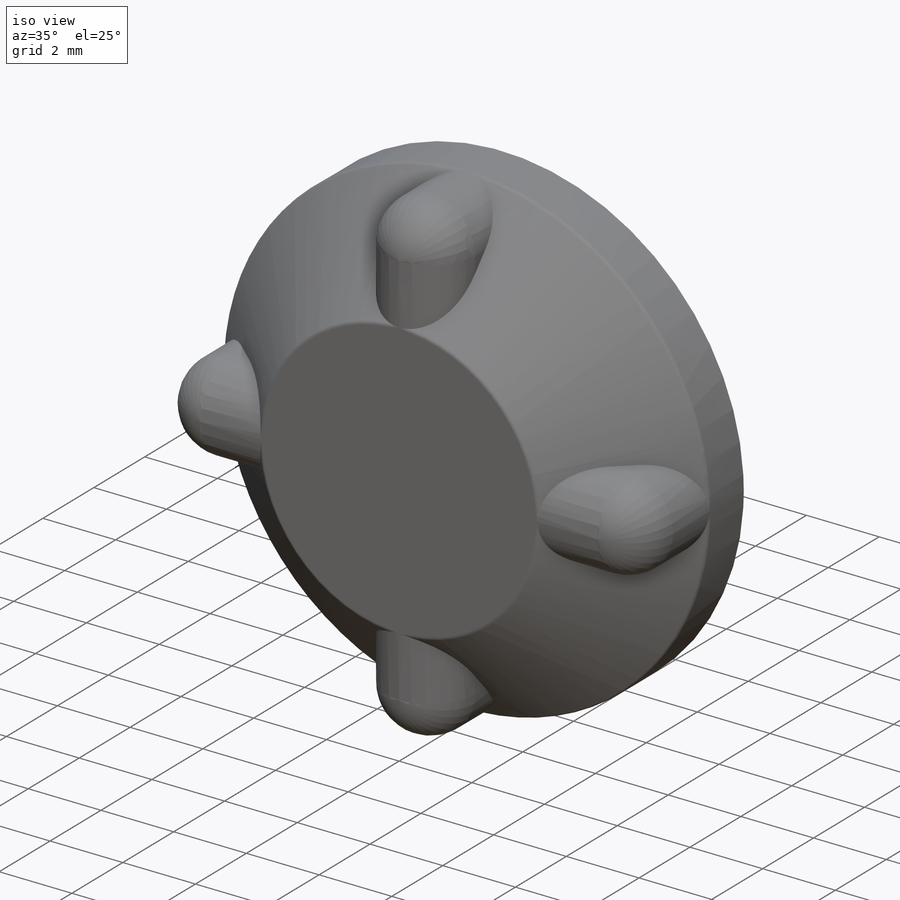
[diagram: iso view]
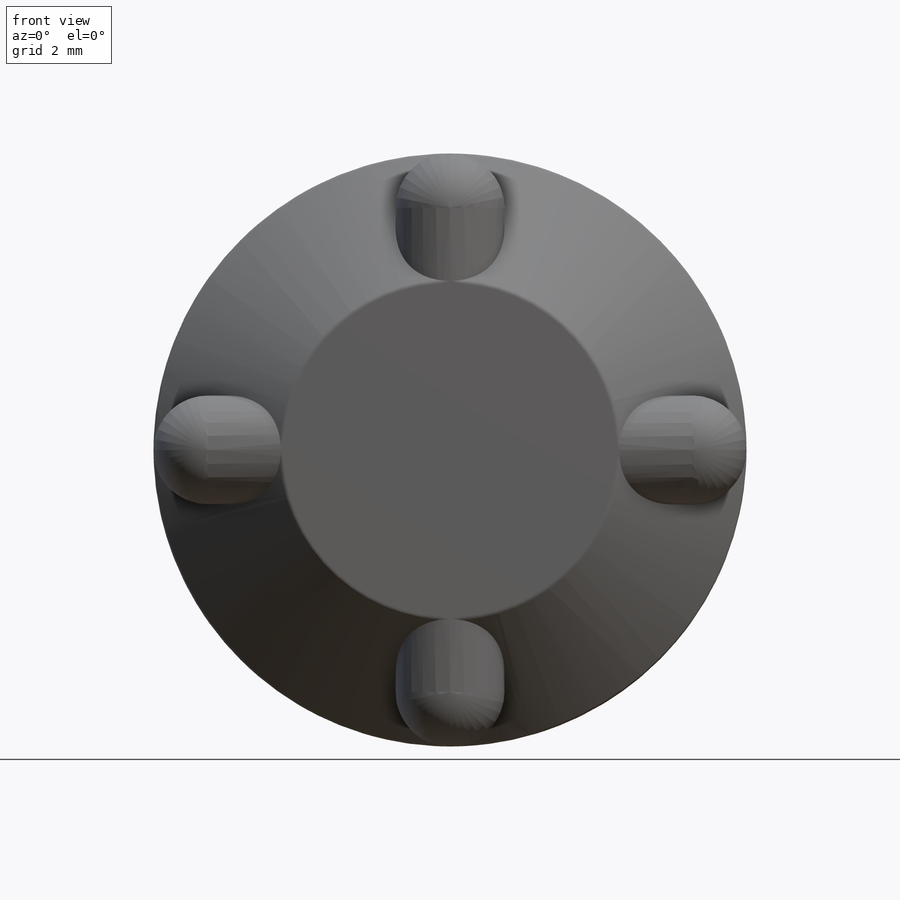
[diagram: front view]
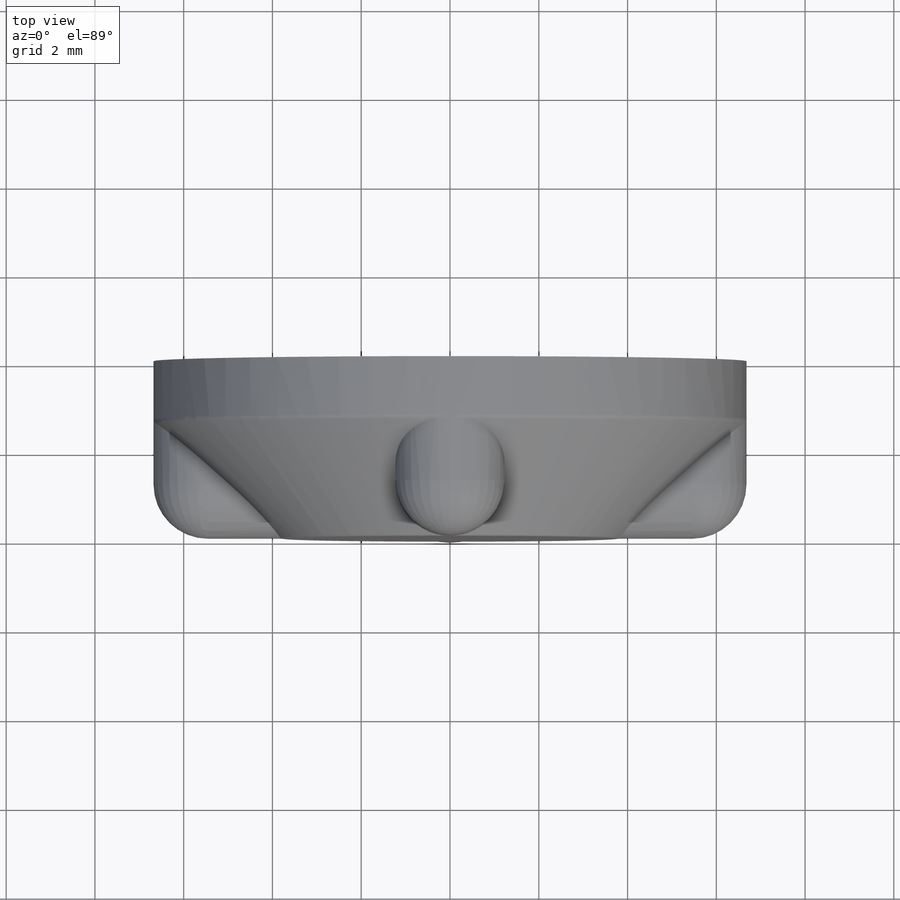
[diagram: top view]
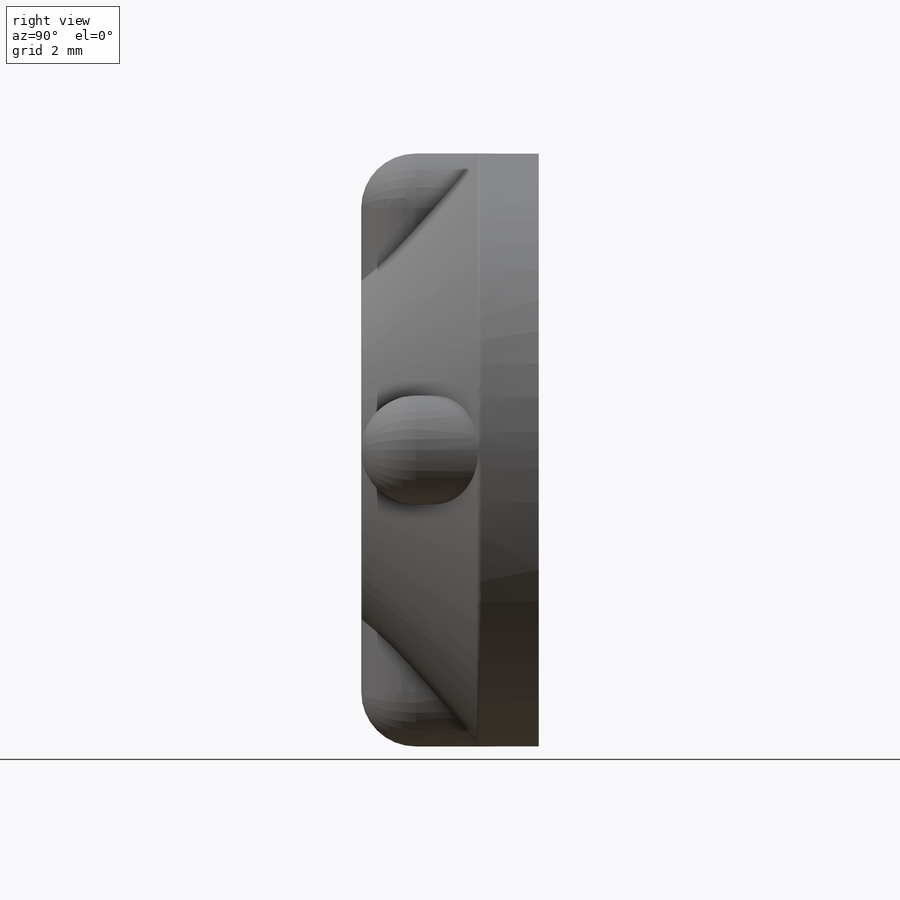
[diagram: right view]
SOLIDWORKS PART (.sldprt)
format: sldprt  version: not decoded by parser v0  size: 379,904 bytes
history: native  units: mm
features: sketch x6, extrude x3, fillet x2, material x1, plane x1 (+16 scaffold rows collapsed)
feature tree (29):
  scaffold x16  (default folders/planes/origin — collapsed)
  material  "Material <not specified>"
  sketch  "Sketch1"  dims[D1=13.3604mm]
  extrude  "Extrude1"  Depth=1.3589mm
  plane  "Plane1"  Offset=4.0005mm
  sketch  "Sketch6"
  sketch  "Sketch2"  dims[D1=7.62mm]
  sketch  "Sketch5"  dims[c1.D1=2.4511mm c1.D2=2.4511mm c2.D1=~1.22555mm]
  sketch  "Sketch3"
  extrude  "Extrude2"  [1 undecoded]
  sketch  "Sketch7"  dims[D1=~1.22555mm D2=~1.22555mm]
  extrude  "Extrude3"  [1 undecoded]
  fillet  "Fillet2"  Radius=1.22555mm
  fillet  "Fillet5"  Radius=0.127mm
decode coverage: 7 of 11 modeling features carry decoded parameters
note: ~ marks probable driven/reference dimensions
note: 2 parameter values undecoded
note: suppression state not decoded; provenance and decode notes live in map.json
